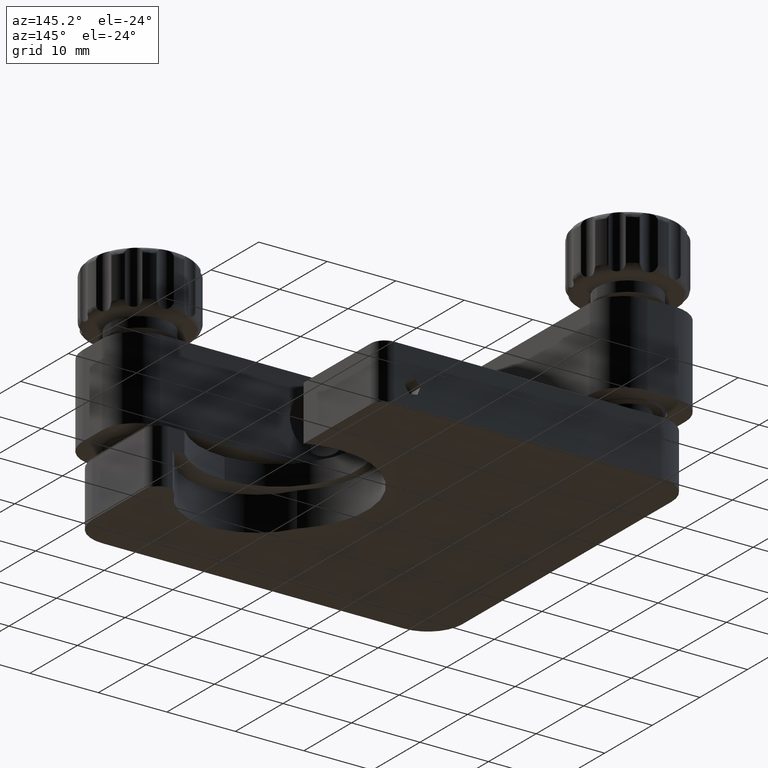
[diagram: clean part render]
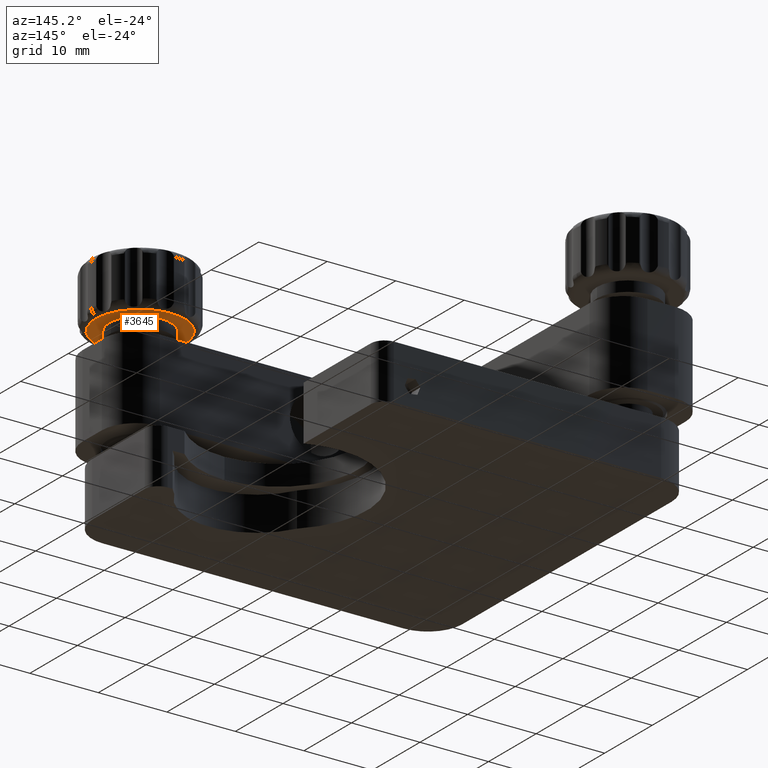
[diagram: same view with one face highlighted and labeled with its STEP entity id]
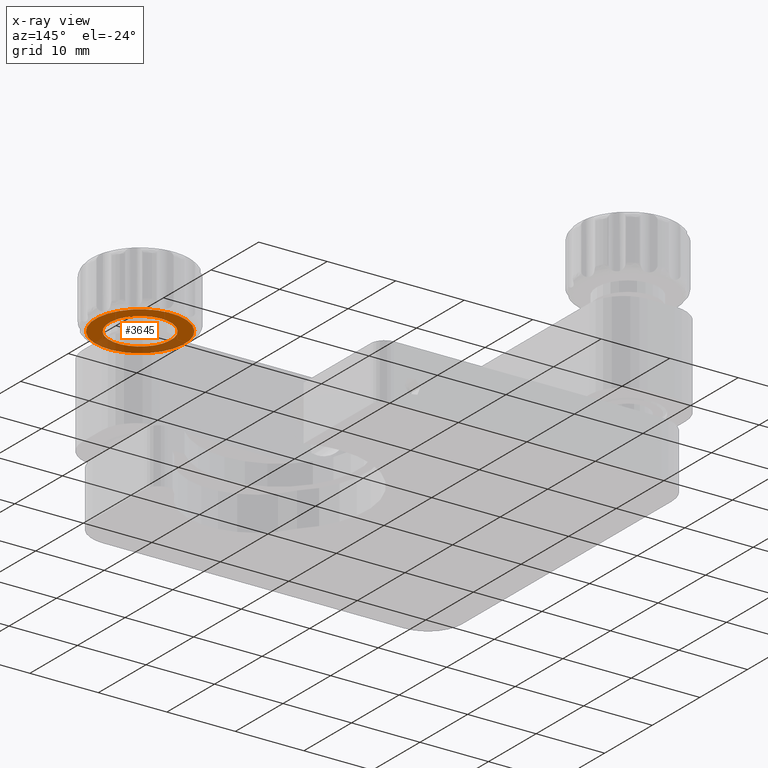
[diagram: x-ray of the same camera — body ghosted, the highlighted face saturated]
A machine part, auxiliary view. The second image highlights one B-rep face of the part: STEP entity #3645.
The next image is the same camera in x-ray: the body ghosted, the highlighted face saturated — about 33% of this face is hidden behind the body in this view.
In plain terms, the highlighted planar face has unit normal (0, -0, 1).
Its self-contained STEP definition (entity closure, byte-faithful):
#460 = CARTESIAN_POINT ( 'NONE',  ( 14.51672653509731100, -21.46600984891881900, 8.499999999999992900 ) ) ;
#1337 = FACE_BOUND ( 'NONE', #19781, .T. ) ;
#1532 = DIRECTION ( 'NONE',  ( 0.0000000000000000000, -0.0000000000000000000, 1.000000000000000000 ) ) ;
#2030 = AXIS2_PLACEMENT_3D ( 'NONE', #15926, #20102, #4892 ) ;
#3493 = CIRCLE ( 'NONE', #19686, 4.500000000000026600 ) ;
#3645 = ADVANCED_FACE ( 'NONE', ( #17286, #1337 ), #7945, .F. ) ;
#3810 = DIRECTION ( 'NONE',  ( -0.0000000000000000000, -0.0000000000000000000, -1.000000000000000000 ) ) ;
#4017 = DIRECTION ( 'NONE',  ( 0.9974266869080979900, 0.07169382291058955200, 0.0000000000000000000 ) ) ;
#4134 = EDGE_CURVE ( 'NONE', #10338, #13219, #7061, .T. ) ;
#4393 = DIRECTION ( 'NONE',  ( 0.9974266869080979900, 0.07169382291058955200, 0.0000000000000000000 ) ) ;
#4528 = DIRECTION ( 'NONE',  ( -0.0000000000000000000, -0.0000000000000000000, -1.000000000000000000 ) ) ;
#4892 = DIRECTION ( 'NONE',  ( 0.9974266869080979900, 0.07169382291059001000, 0.0000000000000000000 ) ) ;
#7061 = CIRCLE ( 'NONE', #2030, 6.500000000000040000 ) ;
#7186 = ORIENTED_EDGE ( 'NONE', *, *, #20604, .F. ) ;
#7713 = DIRECTION ( 'NONE',  ( 0.9974266869080981000, 0.07169382291058948300, 0.0000000000000000000 ) ) ;
#7786 = DIRECTION ( 'NONE',  ( -0.0000000000000000000, -0.0000000000000000000, -1.000000000000000000 ) ) ;
#7945 = PLANE ( 'NONE',  #11632 ) ;
#8368 = VERTEX_POINT ( 'NONE', #11323 ) ;
#8757 = EDGE_CURVE ( 'NONE', #19427, #8368, #3493, .T. ) ;
#8982 = ORIENTED_EDGE ( 'NONE', *, *, #12042, .T. ) ;
#9025 = AXIS2_PLACEMENT_3D ( 'NONE', #13552, #3810, #4017 ) ;
#9098 = EDGE_LOOP ( 'NONE', ( #8982, #18188 ) ) ;
#10338 = VERTEX_POINT ( 'NONE', #460 ) ;
#10447 = CARTESIAN_POINT ( 'NONE',  ( 27.48327346490266300, -20.53399015108114900, 8.499999999999992900 ) ) ;
#10823 = CARTESIAN_POINT ( 'NONE',  ( 20.99999999999998600, -20.99999999999998200, 8.499999999999996400 ) ) ;
#10827 = AXIS2_PLACEMENT_3D ( 'NONE', #17376, #7786, #7713 ) ;
#11323 = CARTESIAN_POINT ( 'NONE',  ( 16.51157990891354600, -21.32262220309763400, 8.499999999999996400 ) ) ;
#11337 = CARTESIAN_POINT ( 'NONE',  ( 25.48842009108645700, -20.67737779690233100, 8.499999999999996400 ) ) ;
#11632 = AXIS2_PLACEMENT_3D ( 'NONE', #12808, #1532, #14279 ) ;
#12042 = EDGE_CURVE ( 'NONE', #13219, #10338, #13639, .T. ) ;
#12808 = CARTESIAN_POINT ( 'NONE',  ( 20.99999999999998600, -20.99999999999998200, 8.499999999999996400 ) ) ;
#13219 = VERTEX_POINT ( 'NONE', #10447 ) ;
#13552 = CARTESIAN_POINT ( 'NONE',  ( 20.99999999999998600, -20.99999999999998200, 8.499999999999996400 ) ) ;
#13639 = CIRCLE ( 'NONE', #10827, 6.500000000000039100 ) ;
#14279 = DIRECTION ( 'NONE',  ( 0.9974266869080981000, 0.07169382291058928900, 0.0000000000000000000 ) ) ;
#15926 = CARTESIAN_POINT ( 'NONE',  ( 20.99999999999998600, -20.99999999999998200, 8.499999999999996400 ) ) ;
#15946 = CIRCLE ( 'NONE', #9025, 4.500000000000026600 ) ;
#16867 = ORIENTED_EDGE ( 'NONE', *, *, #8757, .F. ) ;
#17286 = FACE_OUTER_BOUND ( 'NONE', #9098, .T. ) ;
#17376 = CARTESIAN_POINT ( 'NONE',  ( 20.99999999999998600, -20.99999999999998200, 8.499999999999996400 ) ) ;
#18188 = ORIENTED_EDGE ( 'NONE', *, *, #4134, .T. ) ;
#19427 = VERTEX_POINT ( 'NONE', #11337 ) ;
#19686 = AXIS2_PLACEMENT_3D ( 'NONE', #10823, #4528, #4393 ) ;
#19781 = EDGE_LOOP ( 'NONE', ( #16867, #7186 ) ) ;
#20102 = DIRECTION ( 'NONE',  ( -0.0000000000000000000, -0.0000000000000000000, -1.000000000000000000 ) ) ;
#20604 = EDGE_CURVE ( 'NONE', #8368, #19427, #15946, .T. ) ;